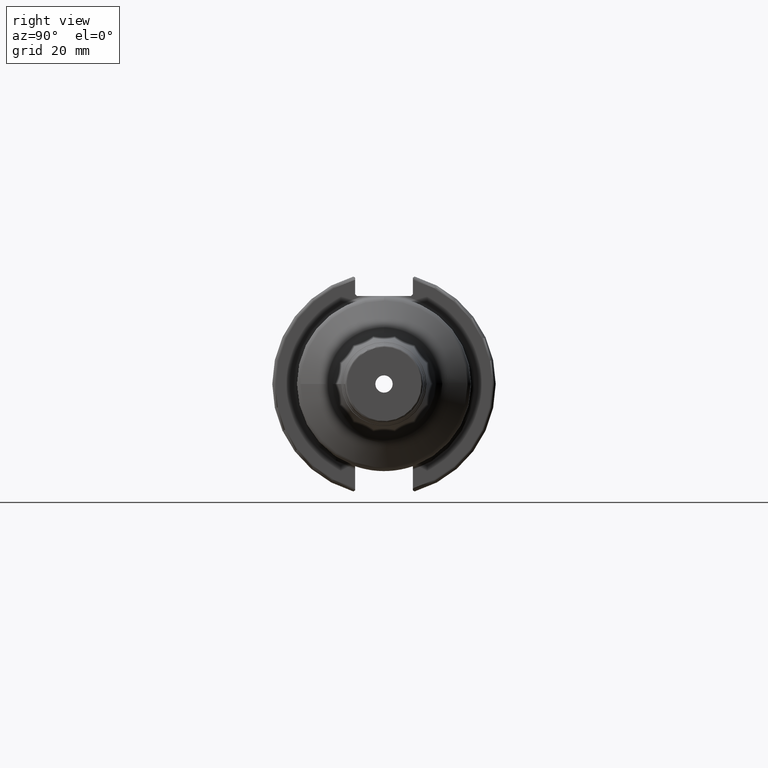
[diagram: clean part render]
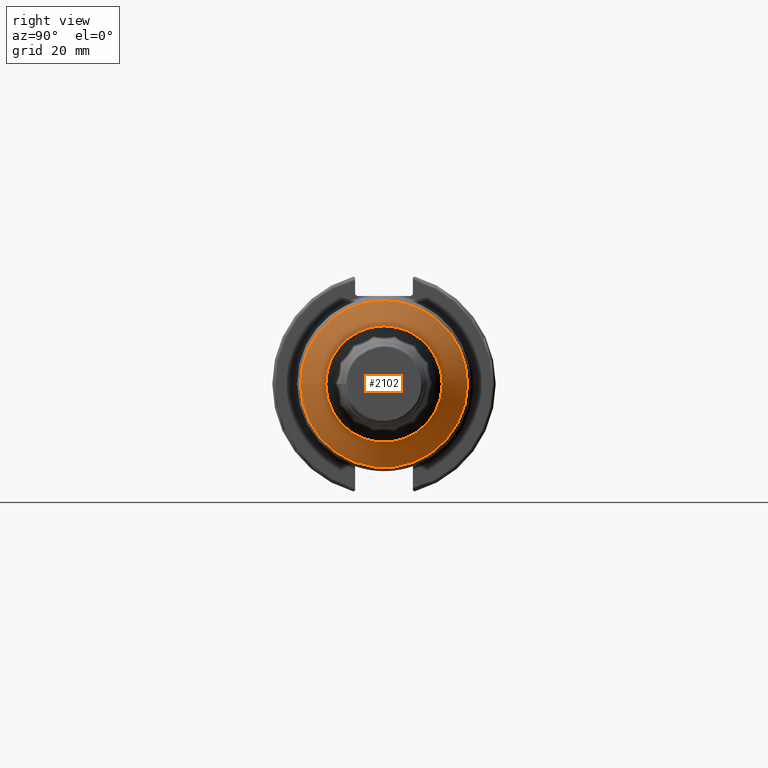
[diagram: same view with one face highlighted and labeled with its STEP entity id]
A machine part, right view. The second image highlights one B-rep face of the part: STEP entity #2102.
In plain terms, the highlighted conical surface has half-angle 60 deg.
Its self-contained STEP definition (entity closure, byte-faithful):
#191=FACE_OUTER_BOUND('',#301,.T.);
#301=EDGE_LOOP('',(#1432,#1433,#1434,#1435,#1436,#1437,#1438,#1439));
#422=LINE('',#3389,#523);
#523=VECTOR('',#2596,19.7092722749064);
#632=CIRCLE('',#2246,23.75);
#633=CIRCLE('',#2247,23.75);
#635=CIRCLE('',#2249,23.75);
#636=CIRCLE('',#2251,16.5493982658786);
#637=CIRCLE('',#2252,16.5493982658786);
#638=CIRCLE('',#2253,16.5493982658786);
#814=VERTEX_POINT('',#3376);
#815=VERTEX_POINT('',#3377);
#816=VERTEX_POINT('',#3379);
#817=VERTEX_POINT('',#3384);
#818=VERTEX_POINT('',#3385);
#819=VERTEX_POINT('',#3387);
#1065=EDGE_CURVE('',#814,#815,#632,.T.);
#1066=EDGE_CURVE('',#815,#816,#633,.T.);
#1068=EDGE_CURVE('',#816,#814,#635,.T.);
#1069=EDGE_CURVE('',#817,#818,#636,.T.);
#1070=EDGE_CURVE('',#819,#817,#637,.T.);
#1071=EDGE_CURVE('',#819,#815,#422,.T.);
#1072=EDGE_CURVE('',#818,#819,#638,.T.);
#1432=ORIENTED_EDGE('',*,*,#1069,.F.);
#1433=ORIENTED_EDGE('',*,*,#1070,.F.);
#1434=ORIENTED_EDGE('',*,*,#1071,.T.);
#1435=ORIENTED_EDGE('',*,*,#1065,.F.);
#1436=ORIENTED_EDGE('',*,*,#1068,.F.);
#1437=ORIENTED_EDGE('',*,*,#1066,.F.);
#1438=ORIENTED_EDGE('',*,*,#1071,.F.);
#1439=ORIENTED_EDGE('',*,*,#1072,.F.);
#2073=CONICAL_SURFACE('',#2250,19.7092722749064,1.0471975511966);
#2102=ADVANCED_FACE('',(#191),#2073,.T.);
#2246=AXIS2_PLACEMENT_3D('',#3378,#2582,#2583);
#2247=AXIS2_PLACEMENT_3D('',#3380,#2584,#2585);
#2249=AXIS2_PLACEMENT_3D('',#3382,#2588,#2589);
#2250=AXIS2_PLACEMENT_3D('',#3383,#2590,#2591);
#2251=AXIS2_PLACEMENT_3D('',#3386,#2592,#2593);
#2252=AXIS2_PLACEMENT_3D('',#3388,#2594,#2595);
#2253=AXIS2_PLACEMENT_3D('',#3390,#2597,#2598);
#2582=DIRECTION('center_axis',(-1.,0.,0.));
#2583=DIRECTION('ref_axis',(0.,-1.,3.06161699786838E-17));
#2584=DIRECTION('center_axis',(-1.,0.,0.));
#2585=DIRECTION('ref_axis',(0.,-1.,3.06161699786838E-17));
#2588=DIRECTION('center_axis',(-1.,0.,0.));
#2589=DIRECTION('ref_axis',(0.,-1.,3.06161699786838E-17));
#2590=DIRECTION('center_axis',(-1.,0.,0.));
#2591=DIRECTION('ref_axis',(0.,1.,0.));
#2592=DIRECTION('center_axis',(1.,0.,0.));
#2593=DIRECTION('ref_axis',(0.,-1.,3.06161699786838E-17));
#2594=DIRECTION('center_axis',(1.,0.,0.));
#2595=DIRECTION('ref_axis',(0.,-1.,3.06161699786838E-17));
#2596=DIRECTION('',(-0.5,-0.866025403784439,-1.06057523872491E-16));
#2597=DIRECTION('center_axis',(1.,0.,0.));
#2598=DIRECTION('ref_axis',(0.,-1.,3.06161699786838E-17));
#3376=CARTESIAN_POINT('',(44.7568192512009,23.75,-7.27134036993741E-15));
#3377=CARTESIAN_POINT('',(44.7568192512009,-23.75,-2.90853614797496E-15));
#3378=CARTESIAN_POINT('Origin',(44.7568192512009,0.,-3.6356701849687E-15));
#3379=CARTESIAN_POINT('',(44.7568192512009,-2.90853614797496E-15,23.75));
#3380=CARTESIAN_POINT('Origin',(44.7568192512009,0.,-3.6356701849687E-15));
#3382=CARTESIAN_POINT('Origin',(44.7568192512009,0.,-3.6356701849687E-15));
#3383=CARTESIAN_POINT('Origin',(47.0897344910056,0.,0.));
#3384=CARTESIAN_POINT('',(48.9140886007231,16.5493982658786,-1.01335838070615E-15));
#3385=CARTESIAN_POINT('',(48.9140886007231,-2.0267167614123E-15,16.5493982658786));
#3386=CARTESIAN_POINT('Origin',(48.9140886007231,0.,-2.53339595176538E-15));
#3387=CARTESIAN_POINT('',(48.9140886007231,-16.5493982658786,-2.0267167614123E-15));
#3388=CARTESIAN_POINT('Origin',(48.9140886007231,0.,-2.53339595176538E-15));
#3389=CARTESIAN_POINT('',(47.0897344910056,-19.7092722749064,-2.41368972049878E-15));
#3390=CARTESIAN_POINT('Origin',(48.9140886007231,0.,-2.53339595176538E-15));